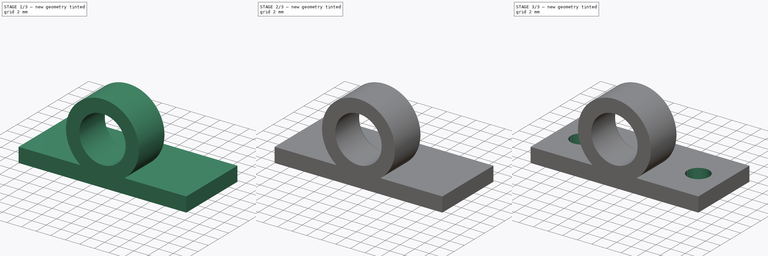
[diagram: build sequence overview — one tinted view per stage of 3, left to right]
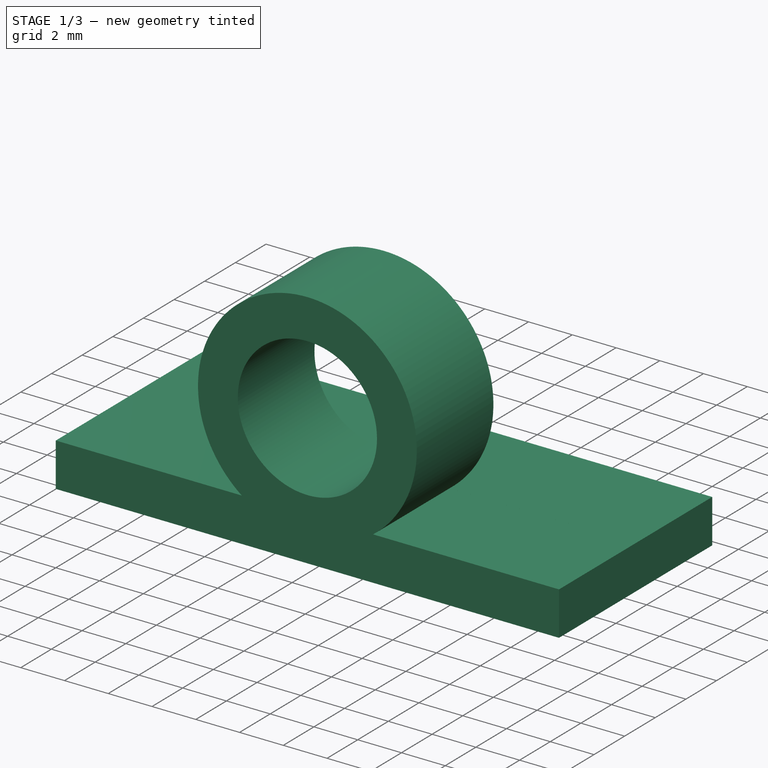
[diagram: stage 1 of 3 — iso view after this stage's code; geometry added in this stage tinted green]
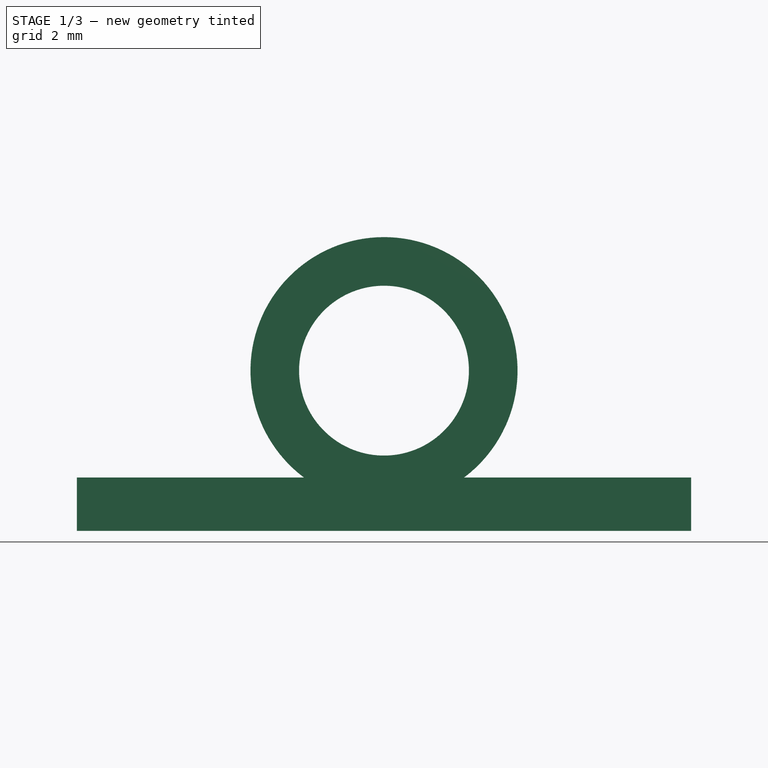
[diagram: stage 1 of 3 — front view after this stage's code; geometry added in this stage tinted green]
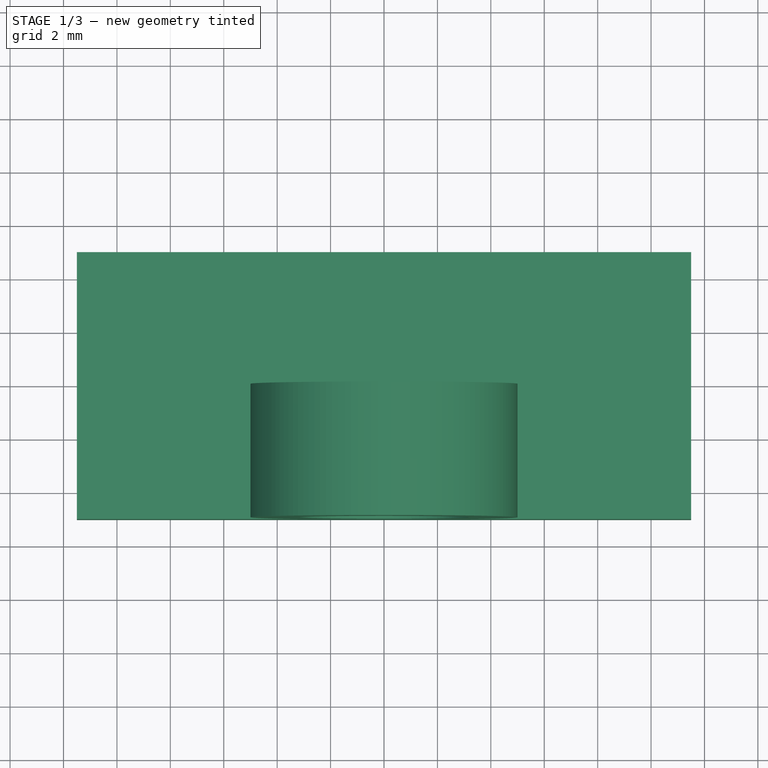
[diagram: stage 1 of 3 — top view after this stage's code; geometry added in this stage tinted green]
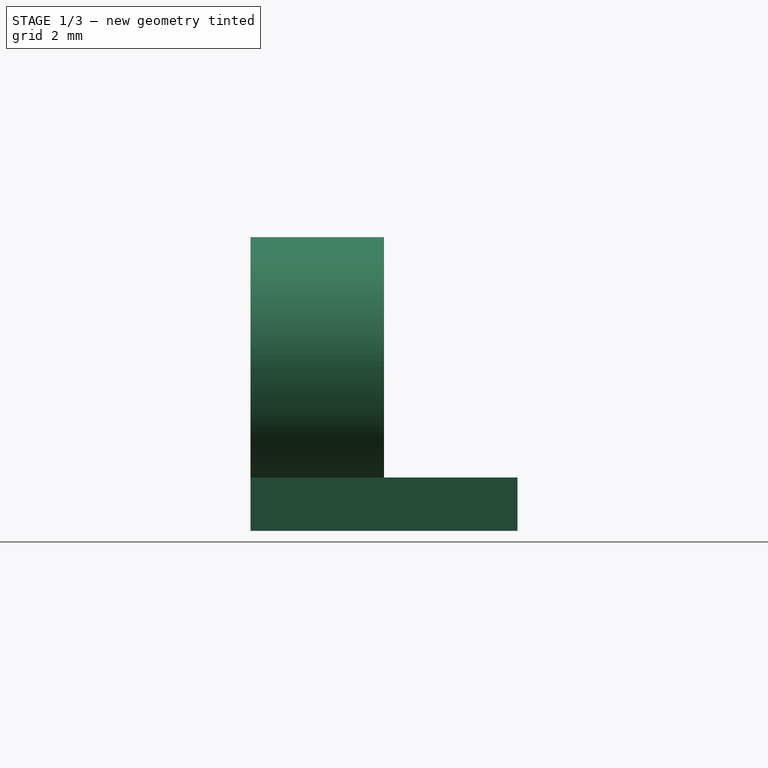
[diagram: stage 1 of 3 — right view after this stage's code; geometry added in this stage tinted green]
FCSTD DOCUMENT  (FreeCAD 0.16R6706 (Git))
Label: laser_diode_mount
License: All rights reserved
LicenseURL: http://en.wikipedia.org/wiki/All_rights_reserved
objects: Sketcher::SketchObject×3, PartDesign::Pad×2, PartDesign::Fillet×1, Part::FeaturePython×1, PartDesign::Pocket×1
note: 11 computed .brp shape members not serialized (recipe doc carries the construction recipe); baked Part::Feature solids carry a one-line shape summary decoded from their .brp

FEATURE [Sketcher::SketchObject] Sketch
  Placement = pos=(0,0,0) rot=(1,0,0;1.5708rad)
  expr: Constraints[2] = 6.36 / 2
  sketch-geometry (9):
    g0: Circle CenterX=0 CenterY=0 CenterZ=0 NormalX=0 NormalY=0 NormalZ=1 Radius=3.18
    g1: ArcOfCircle CenterX=0 CenterY=0 CenterZ=0 NormalX=0 NormalY=0 NormalZ=1 Radius=5 StartAngle=5.35589 EndAngle=10.3521
    g2: LineSegment StartX=-11.5 StartY=-4 StartZ=0 EndX=-3 EndY=-4 EndZ=0
    g3: LineSegment StartX=11.5 StartY=-4 StartZ=0 EndX=11.5 EndY=-6 EndZ=0
    g4: LineSegment StartX=11.5 StartY=-6 StartZ=0 EndX=-11.5 EndY=-6 EndZ=0
    g5: LineSegment StartX=-11.5 StartY=-6 StartZ=0 EndX=-11.5 EndY=-4 EndZ=0
    g6: Circle [constr] CenterX=0 CenterY=0 CenterZ=0 NormalX=0 NormalY=0 NormalZ=1 Radius=4
    g7: LineSegment StartX=3 StartY=-4 StartZ=0 EndX=11.5 EndY=-4 EndZ=0
    g8: LineSegment [constr] StartX=-3 StartY=-4 StartZ=0 EndX=3 EndY=-4 EndZ=0
  constraints (24):
    c: Coincident(g0,g-1)
    c: Coincident(g1,g-1)
    c: Radius(g0) = 3.18
    c: Radius(g1) = 5
    c: Coincident(g7,g3)
    c: Coincident(g3,g4)
    c: Coincident(g4,g5)
    c: Coincident(g5,g2)
    c: Horizontal(g2)
    c: Horizontal(g4)
    c: Vertical(g3)
    c: Vertical(g5)
    c: Coincident(g6,g-1)
    c: Radius(g6) = 4
    c: Symmetric(g2,g7,g-2)
    c: DistanceY(g5,g5) = 2
    c: DistanceX(g4,g4) = 23
    c: Tangent(g2,g7)
    c: PointOnObject(g1,g2)
    c: Coincident(g7,g1)
    c: Coincident(g8,g1)
    c: Coincident(g8,g1)
    c: Tangent(g8,g6)
    c: Coincident(g2,g1)
FEATURE [PartDesign::Pad] Pad
  Length = 5
  Length2 = 100
  Placement = pos=(0,0,0) rot=(1,0,0;1.5708rad)
  Sketch = -> Sketch
  Type = 0
FEATURE [Sketcher::SketchObject] Sketch001
  Placement = pos=(0,0,0) rot=(1,0,0;1.5708rad)
  sketch-geometry (4):
    g0: LineSegment StartX=-11.5 StartY=-4 StartZ=0 EndX=11.5 EndY=-4 EndZ=0
    g1: LineSegment StartX=11.5 StartY=-4 StartZ=0 EndX=11.5 EndY=-6 EndZ=0
    g2: LineSegment StartX=11.5 StartY=-6 StartZ=0 EndX=-11.5 EndY=-6 EndZ=0
    g3: LineSegment StartX=-11.5 StartY=-6 StartZ=0 EndX=-11.5 EndY=-4 EndZ=0
  constraints (12):
    c: Coincident(g0,g1)
    c: Coincident(g1,g2)
    c: Coincident(g2,g3)
    c: Coincident(g3,g0)
    c: Horizontal(g0)
    c: Horizontal(g2)
    c: Vertical(g1)
    c: Vertical(g3)
    c: Symmetric(g0,g0,g-2)
    c: DistanceX(g2,g2) = 23
    c: DistanceY(g3,g3) = 2
    c: Distance(g-1,g0) = 4
FEATURE [PartDesign::Pad] Pad001
  Length = 5
  Length2 = 100
  Placement = pos=(0,0,0) rot=(1,0,0;1.5708rad)
  Reversed = true
  Sketch = -> Sketch001
  Type = 0
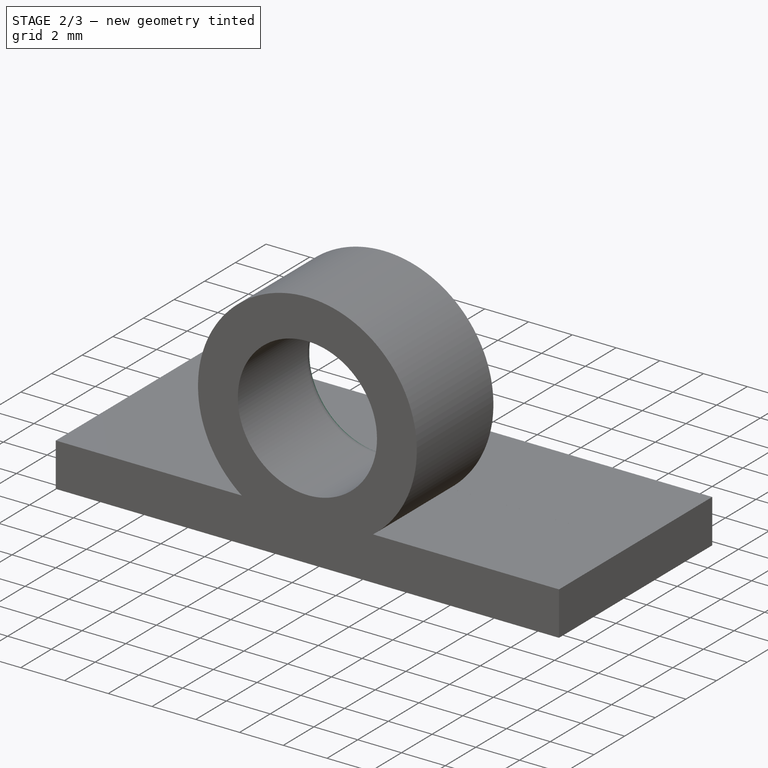
[diagram: stage 2 of 3 — iso view after this stage's code; geometry added in this stage tinted green]
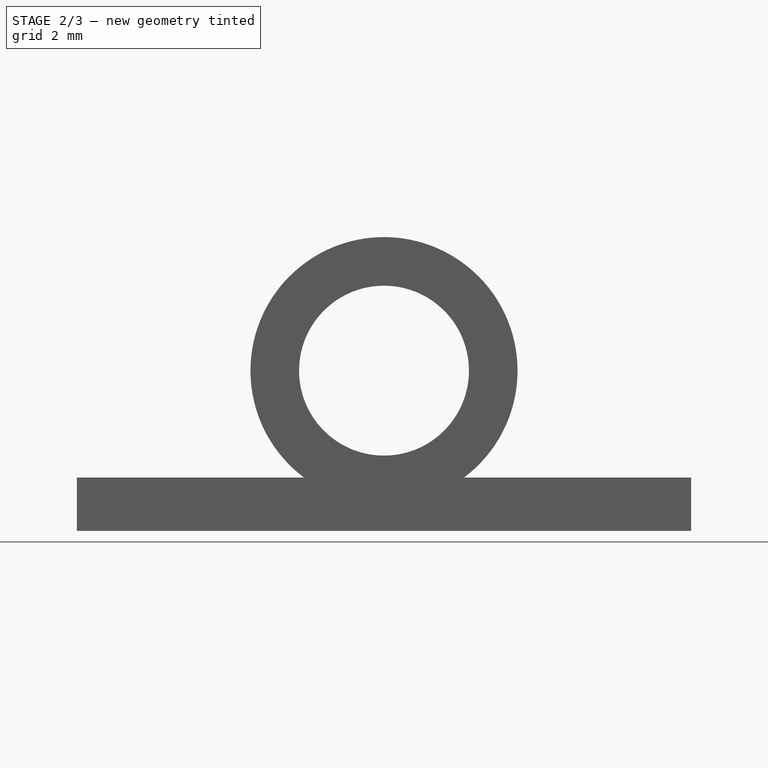
[diagram: stage 2 of 3 — front view after this stage's code; geometry added in this stage tinted green]
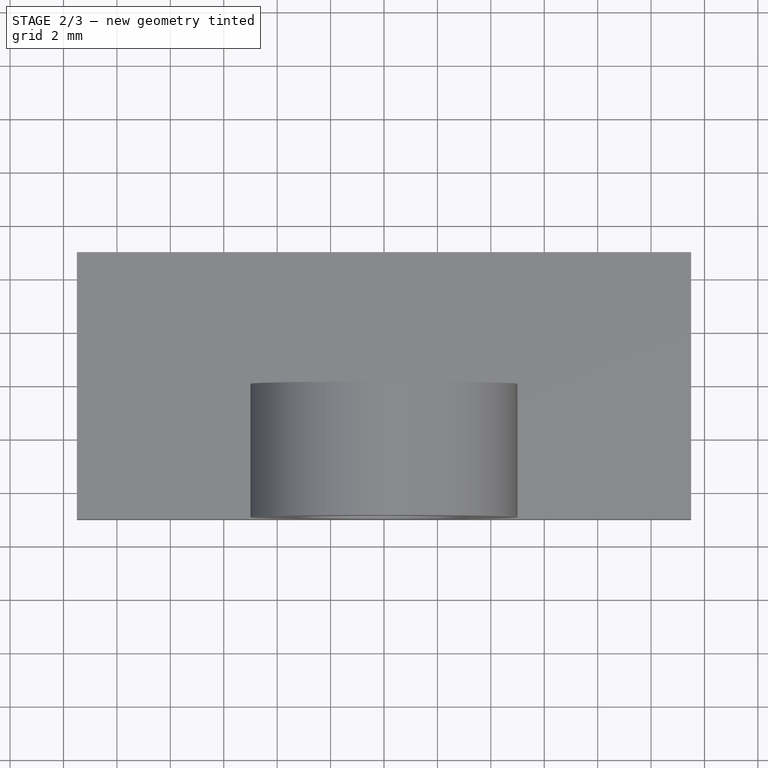
[diagram: stage 2 of 3 — top view after this stage's code; geometry added in this stage tinted green]
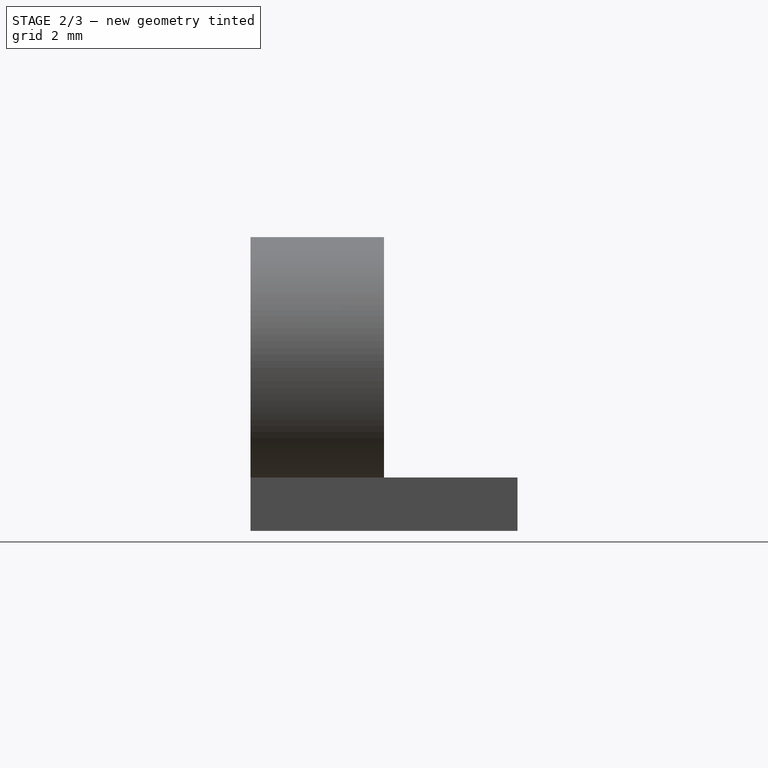
[diagram: stage 2 of 3 — right view after this stage's code; geometry added in this stage tinted green]
FEATURE [PartDesign::Fillet] Fillet
  Base = -> Pad [Edge20]
  Placement = pos=(0,0,0) rot=(1,0,0;1.5708rad)
  Radius = 0.5
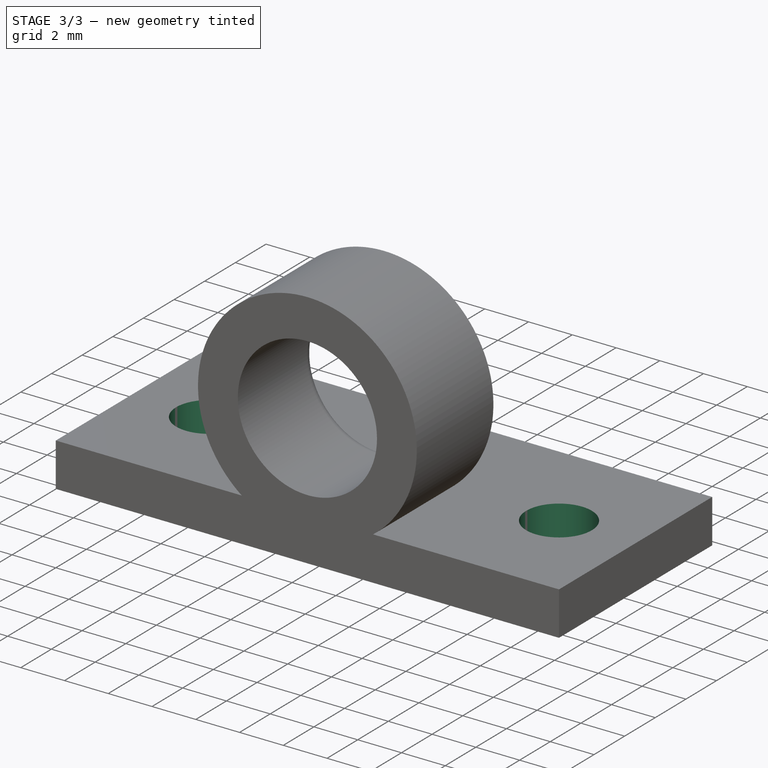
[diagram: stage 3 of 3 — iso view after this stage's code; geometry added in this stage tinted green]
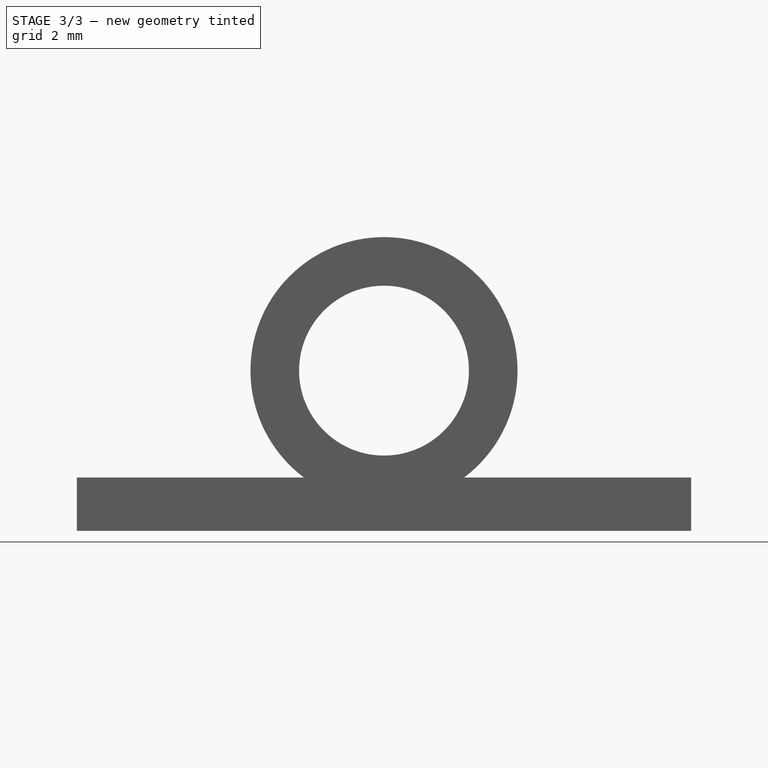
[diagram: stage 3 of 3 — front view after this stage's code; geometry added in this stage tinted green]
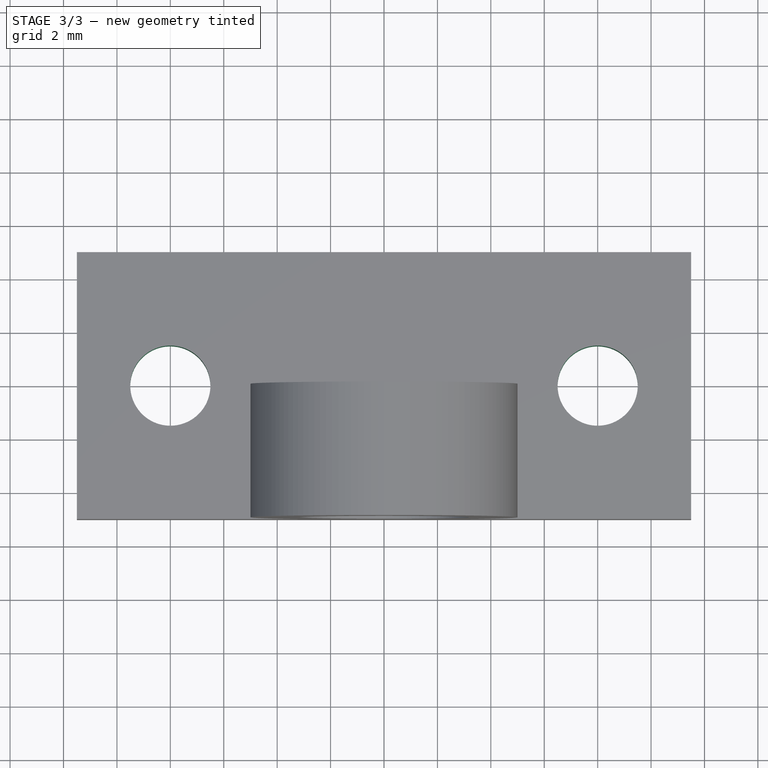
[diagram: stage 3 of 3 — top view after this stage's code; geometry added in this stage tinted green]
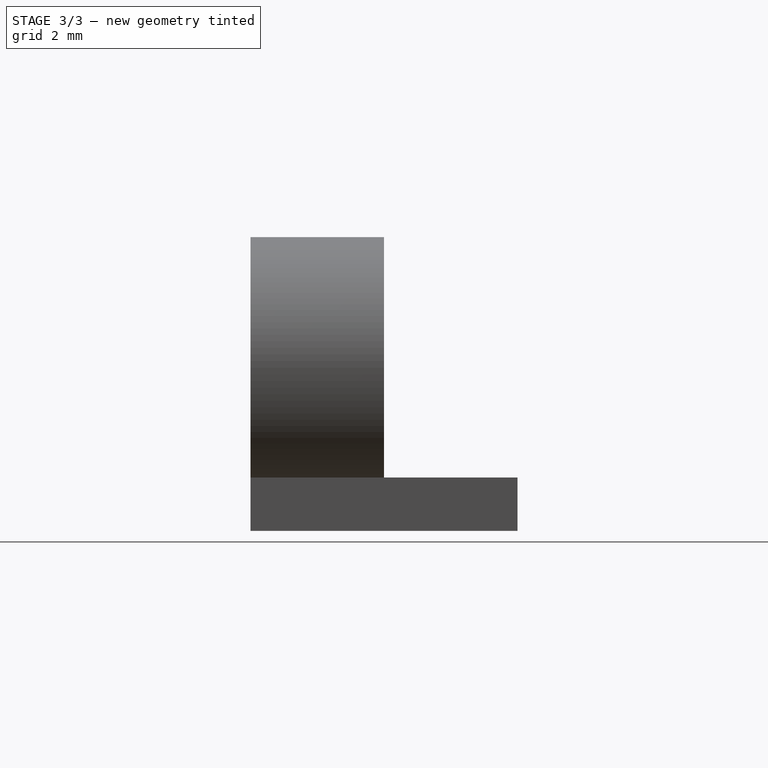
[diagram: stage 3 of 3 — right view after this stage's code; geometry added in this stage tinted green]
FEATURE [Part::FeaturePython] Connect  # WARN: FeaturePython — macro-defined, semantics opaque (R4)
  Base = -> Pad001
  Mode = 1
  Tool = -> Fillet
FEATURE [Sketcher::SketchObject] Sketch002
  Placement = pos=(0,0,-4) rot=(0,0,1;0rad)
  Support = -> Connect [Face2]
  sketch-geometry (2):
    g0: Circle CenterX=8 CenterY=0 CenterZ=0 NormalX=0 NormalY=0 NormalZ=1 Radius=1.5
    g1: Circle CenterX=-8 CenterY=0 CenterZ=0 NormalX=0 NormalY=0 NormalZ=1 Radius=1.5
  constraints (5):
    c: Symmetric(g0,g1,g-2)
    c: DistanceX(g-2,g0) = 8
    c: Radius(g1) = 1.5
    c: Equal(g0,g1)
    c: PointOnObject(g1,g-1)
FEATURE [PartDesign::Pocket] Pocket
  Length = 5
  Sketch = -> Sketch002
  Type = 1
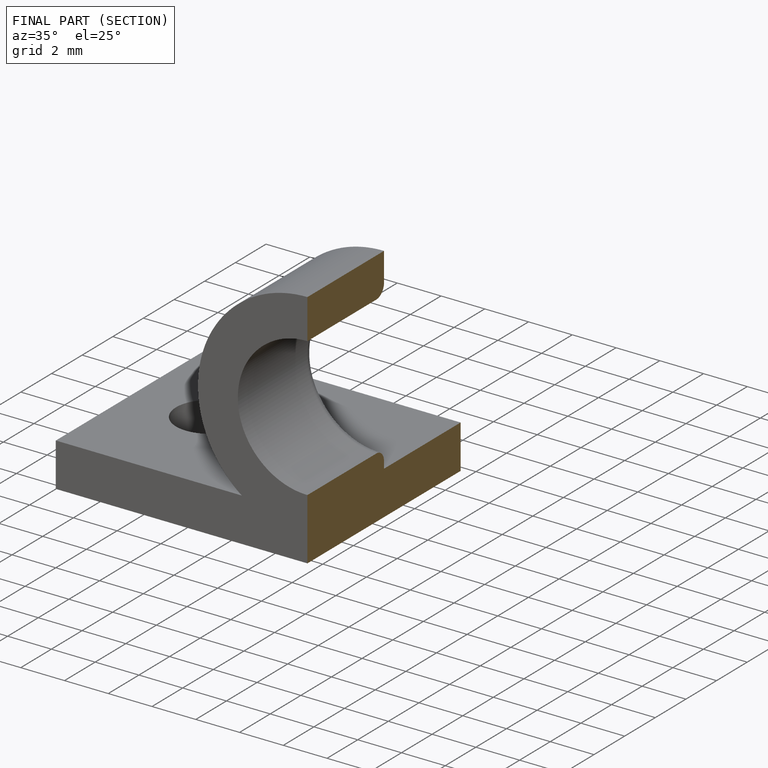
[diagram: finished part — half-section view (interior)]
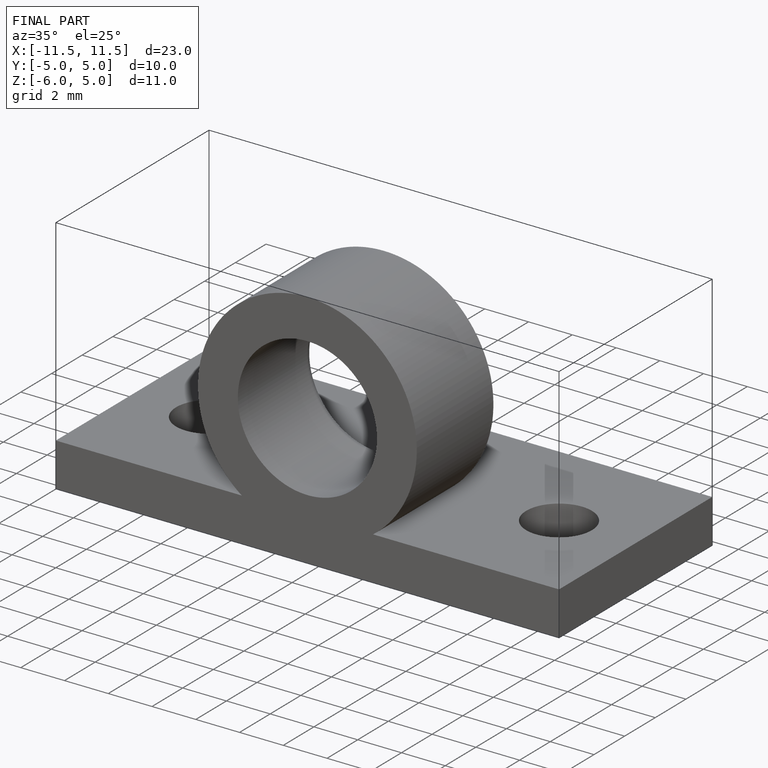
[diagram: finished part — iso view with bounding-box wireframe]
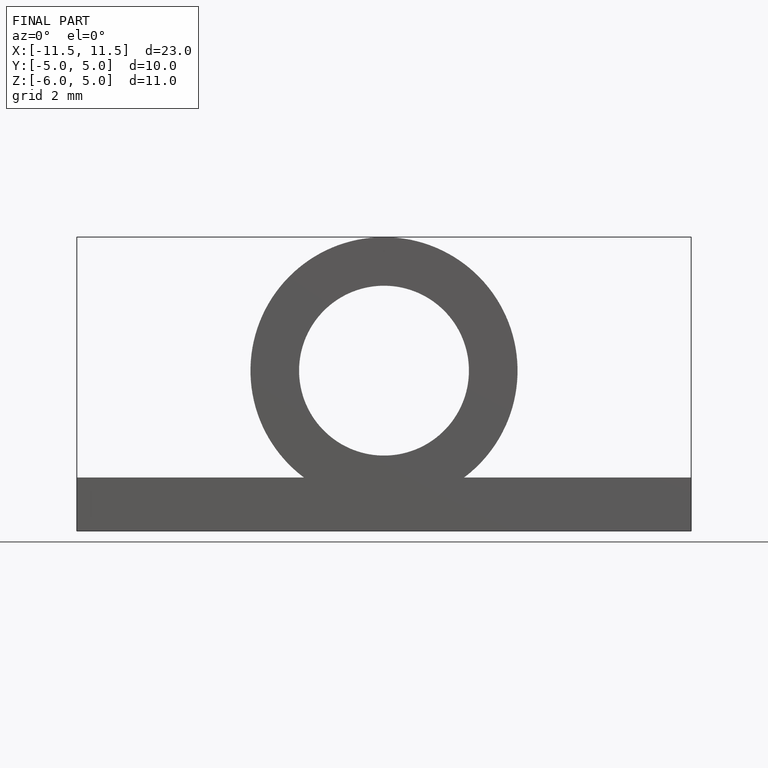
[diagram: finished part — front view with bounding-box wireframe]
